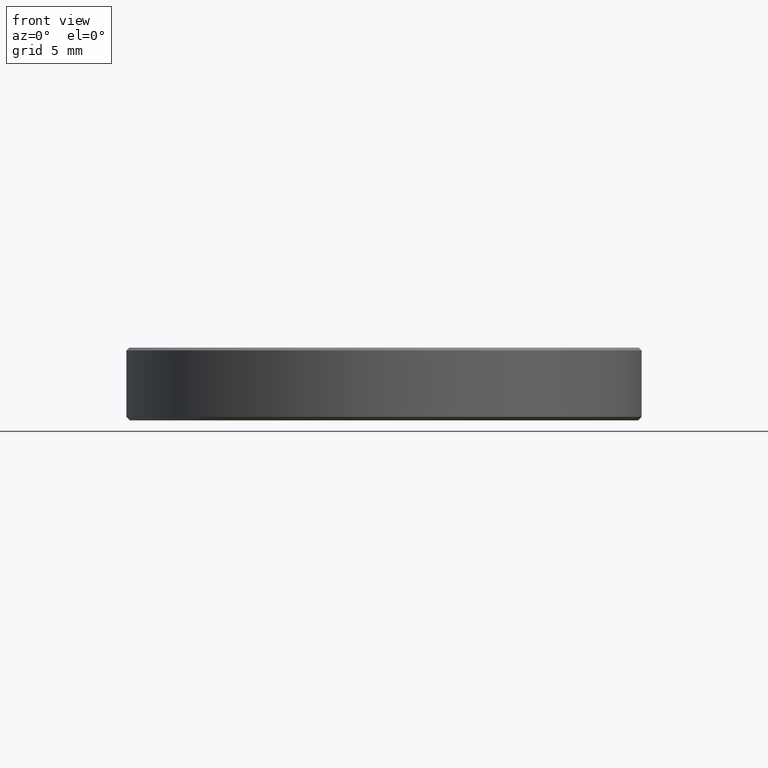
[diagram: clean part render]
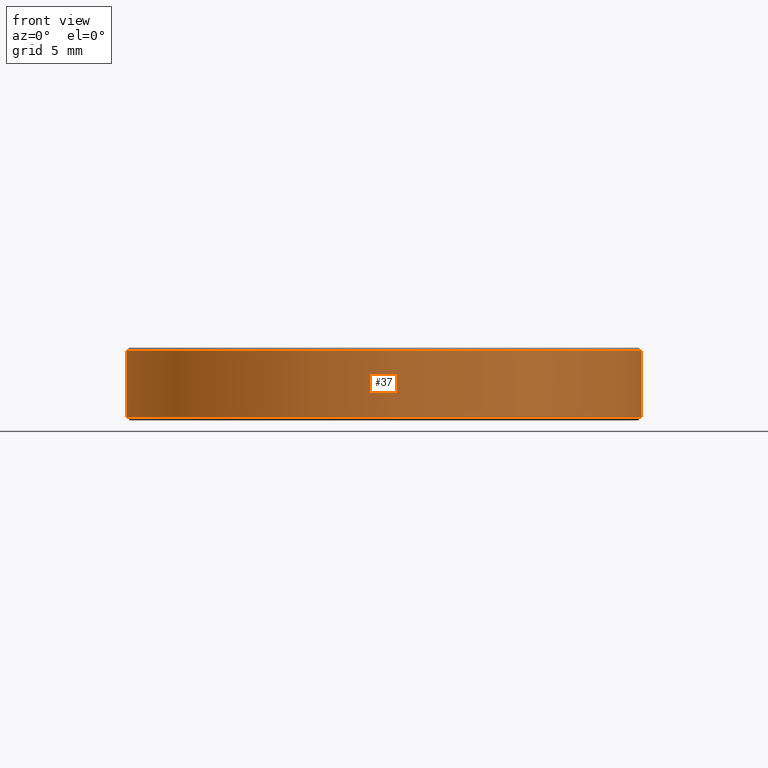
[diagram: same view with one face highlighted and labeled with its STEP entity id]
A machine part, front view. The second image highlights one B-rep face of the part: STEP entity #37.
In plain terms, the highlighted cylindrical surface (partial cylindrical patch) has radius 15 mm, axis along (-0, -0, 1).
Its self-contained STEP definition (entity closure, byte-faithful):
#8 = ORIENTED_EDGE ( 'NONE', *, *, #246, .T. ) ;
#13 = DIRECTION ( 'NONE',  ( -0.000000000000000000, -0.000000000000000000, 1.000000000000000000 ) ) ;
#15 = CARTESIAN_POINT ( 'NONE',  ( -15.00000000000000000, 1.836970198721029589E-15, 2.500000000000000000 ) ) ;
#19 = CARTESIAN_POINT ( 'NONE',  ( 15.00000000000000000, 0.000000000000000000, 4.070000000000018048 ) ) ;
#26 = VERTEX_POINT ( 'NONE', #258 ) ;
#28 = DIRECTION ( 'NONE',  ( 1.000000000000000000, 0.000000000000000000, 0.000000000000000000 ) ) ;
#37 = ADVANCED_FACE ( 'NONE', ( #122 ), #209, .T. ) ;
#45 = CIRCLE ( 'NONE', #152, 15.00000000000000000 ) ;
#52 = VERTEX_POINT ( 'NONE', #176 ) ;
#58 = LINE ( 'NONE', #220, #172 ) ;
#71 = EDGE_LOOP ( 'NONE', ( #206, #8, #226, #75 ) ) ;
#74 = DIRECTION ( 'NONE',  ( 1.000000000000000000, 0.000000000000000000, 0.000000000000000000 ) ) ;
#75 = ORIENTED_EDGE ( 'NONE', *, *, #252, .T. ) ;
#91 = EDGE_CURVE ( 'NONE', #26, #123, #58, .T. ) ;
#103 = CARTESIAN_POINT ( 'NONE',  ( 0.000000000000000000, 0.000000000000000000, 4.070000000000018048 ) ) ;
#122 = FACE_OUTER_BOUND ( 'NONE', #71, .T. ) ;
#123 = VERTEX_POINT ( 'NONE', #19 ) ;
#126 = CARTESIAN_POINT ( 'NONE',  ( -15.00000000000000000, 1.836970198721029589E-15, 4.070000000000018048 ) ) ;
#128 = DIRECTION ( 'NONE',  ( -0.000000000000000000, -0.000000000000000000, 1.000000000000000000 ) ) ;
#137 = DIRECTION ( 'NONE',  ( -0.000000000000000000, -0.000000000000000000, 1.000000000000000000 ) ) ;
#141 = AXIS2_PLACEMENT_3D ( 'NONE', #194, #13, #28 ) ;
#152 = AXIS2_PLACEMENT_3D ( 'NONE', #103, #259, #257 ) ;
#172 = VECTOR ( 'NONE', #128, 1000.000000000000000 ) ;
#176 = CARTESIAN_POINT ( 'NONE',  ( -15.00000000000000000, 1.836970198721029589E-15, 0.1999999999999944600 ) ) ;
#188 = VERTEX_POINT ( 'NONE', #126 ) ;
#194 = CARTESIAN_POINT ( 'NONE',  ( 0.000000000000000000, 0.000000000000000000, 2.500000000000000000 ) ) ;
#206 = ORIENTED_EDGE ( 'NONE', *, *, #228, .F. ) ;
#208 = CARTESIAN_POINT ( 'NONE',  ( 0.000000000000000000, 0.000000000000000000, 0.1999999999999944600 ) ) ;
#209 = CYLINDRICAL_SURFACE ( 'NONE', #141, 15.00000000000000000 ) ;
#212 = LINE ( 'NONE', #15, #249 ) ;
#220 = CARTESIAN_POINT ( 'NONE',  ( 15.00000000000000000, 0.000000000000000000, 2.500000000000000000 ) ) ;
#226 = ORIENTED_EDGE ( 'NONE', *, *, #91, .T. ) ;
#228 = EDGE_CURVE ( 'NONE', #52, #188, #212, .T. ) ;
#232 = DIRECTION ( 'NONE',  ( -0.000000000000000000, -0.000000000000000000, 1.000000000000000000 ) ) ;
#242 = AXIS2_PLACEMENT_3D ( 'NONE', #208, #137, #74 ) ;
#246 = EDGE_CURVE ( 'NONE', #52, #26, #263, .T. ) ;
#249 = VECTOR ( 'NONE', #232, 1000.000000000000000 ) ;
#252 = EDGE_CURVE ( 'NONE', #123, #188, #45, .T. ) ;
#257 = DIRECTION ( 'NONE',  ( -1.000000000000000000, 0.000000000000000000, 0.000000000000000000 ) ) ;
#258 = CARTESIAN_POINT ( 'NONE',  ( 15.00000000000000000, 0.000000000000000000, 0.1999999999999944600 ) ) ;
#259 = DIRECTION ( 'NONE',  ( 0.000000000000000000, 0.000000000000000000, -1.000000000000000000 ) ) ;
#263 = CIRCLE ( 'NONE', #242, 15.00000000000000000 ) ;